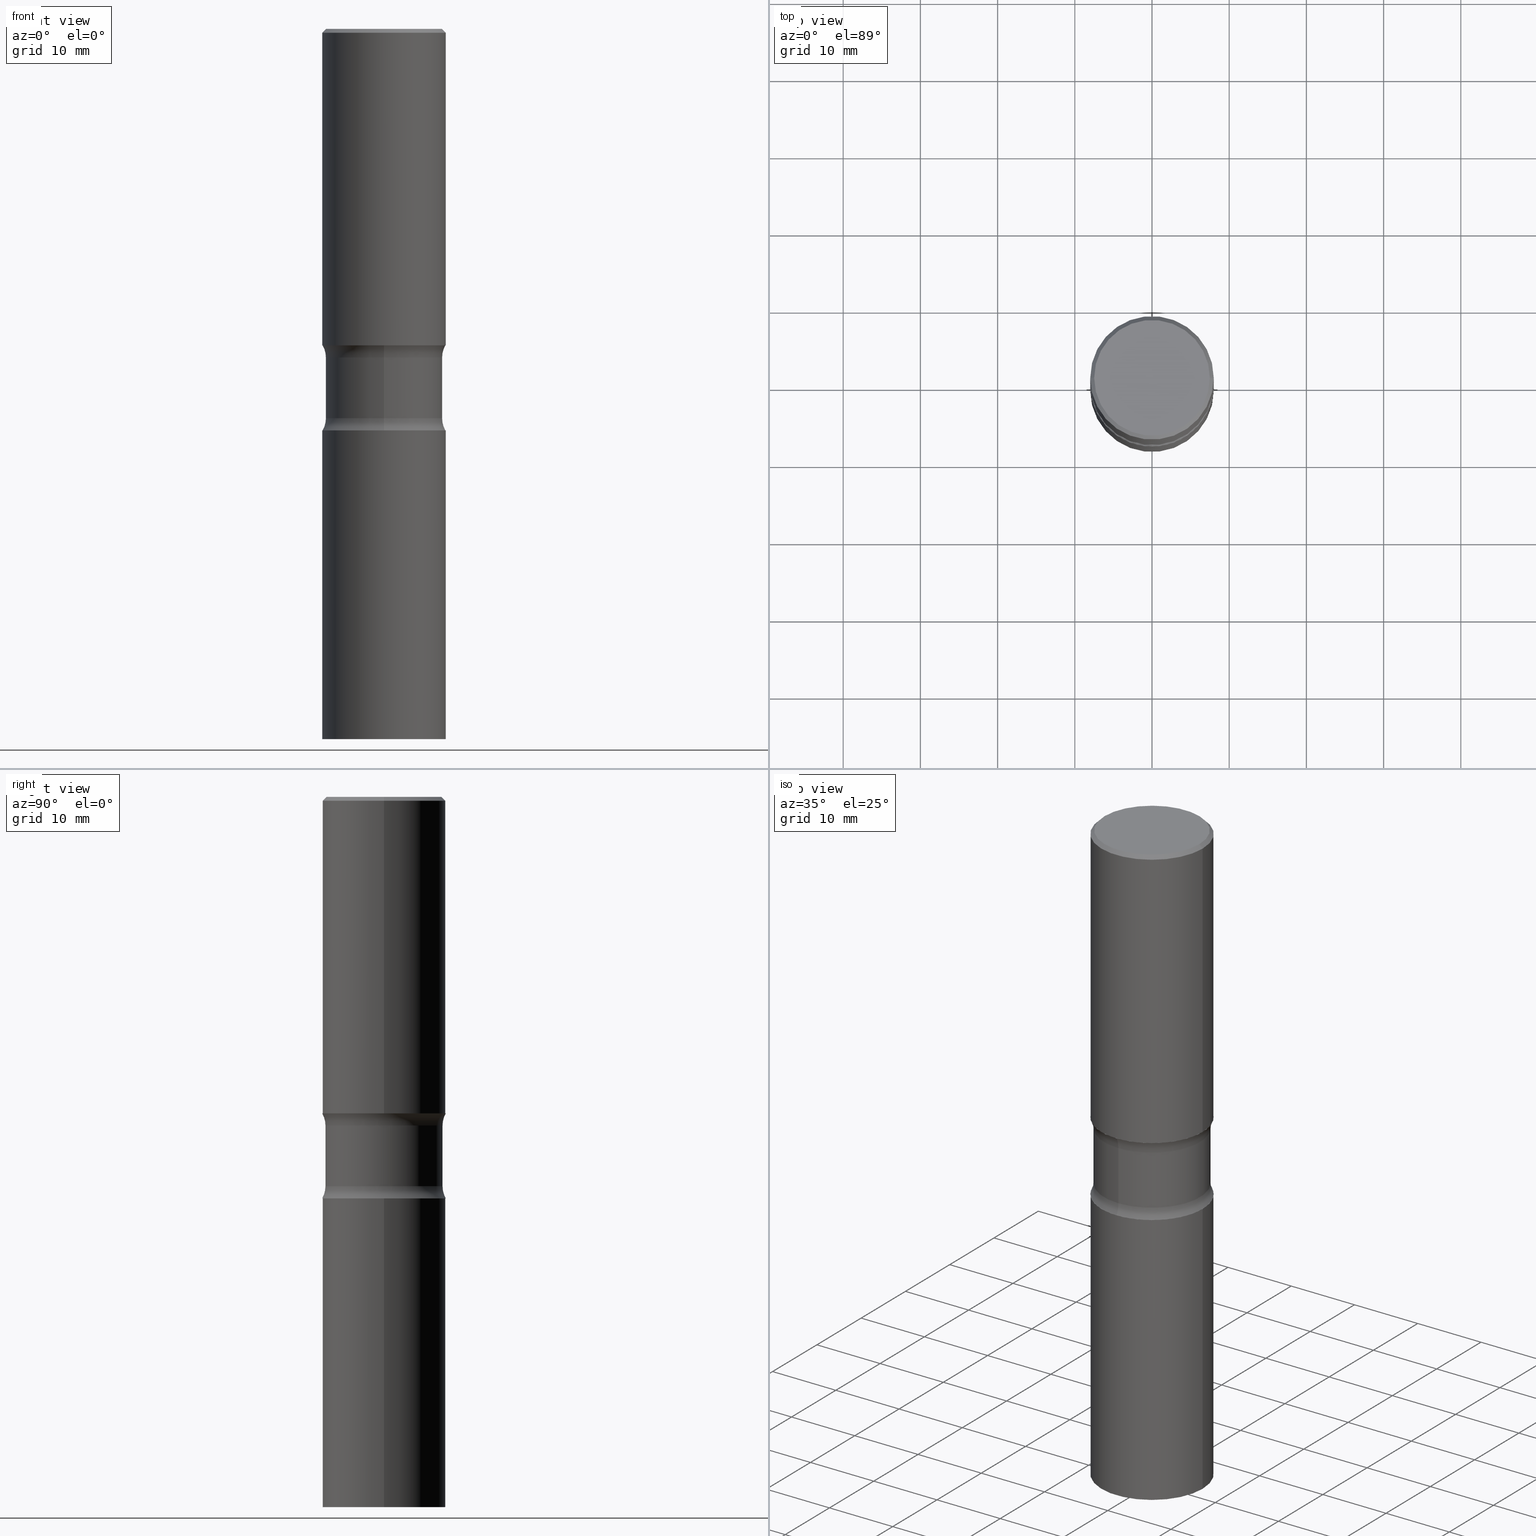
[diagram: canonical four-view strip — front | top / right | iso, engineering-drawing reading convention]
A machine part, canonical four-view strip (front | top / right | iso — engineering-drawing reading convention). The complete STEP part file that produces these views, byte-faithful:
ISO-10303-21;
HEADER;
FILE_DESCRIPTION (( 'STEP AP203' ),
    '1' );
FILE_NAME ('44634.STEP',
    '2024-03-11T13:38:04',
    ( '' ),
    ( '' ),
    'SwSTEP 2.0',
    'SolidWorks 2023',
    '' );
FILE_SCHEMA (( 'CONFIG_CONTROL_DESIGN' ));
ENDSEC;

DATA;
#1 = CARTESIAN_POINT ( 'NONE',  ( 4.856852841857767702E-29, -6.928388333628615864E-15, -1.985216957964294870 ) ) ;
#2 = ORIENTED_EDGE ( 'NONE', *, *, #5, .F. ) ;
#3 = AXIS2_PLACEMENT_3D ( 'NONE', #485, #288, #360 ) ;
#4 = LOCAL_TIME ( 9, 38, 4.000000000000000000, #381 ) ;
#5 = EDGE_CURVE ( 'NONE', #200, #50, #331, .T. ) ;
#6 = CC_DESIGN_PERSON_AND_ORGANIZATION_ASSIGNMENT ( #36, #502, ( #290 ) ) ;
#7 = ORIENTED_EDGE ( 'NONE', *, *, #106, .T. ) ;
#8 = LOCAL_TIME ( 9, 38, 4.000000000000000000, #265 ) ;
#9 = ORIENTED_EDGE ( 'NONE', *, *, #151, .T. ) ;
#10 = ORIENTED_EDGE ( 'NONE', *, *, #199, .T. ) ;
#11 = CARTESIAN_POINT ( 'NONE',  ( 4.111182931094906957E-29, -5.834292197691040405E-15, -1.676083042035705573 ) ) ;
#12 = VERTEX_POINT ( 'NONE', #458 ) ;
#13 = DIRECTION ( 'NONE',  ( -2.438088387897960049E-29, 3.491481338843145188E-15, 1.000000000000000000 ) ) ;
#14 = DIRECTION ( 'NONE',  ( -0.7071067811865471286, 2.468850131082252722E-15, -0.7071067811865479058 ) ) ;
#15 = EDGE_CURVE ( 'NONE', #317, #279, #396, .T. ) ;
#16 = ORIENTED_EDGE ( 'NONE', *, *, #15, .T. ) ;
#17 = DIRECTION ( 'NONE',  ( 1.000000000000000000, -6.982962677686265922E-15, 0.000000000000000000 ) ) ;
#18 = ORIENTED_EDGE ( 'NONE', *, *, #78, .F. ) ;
#19 = DIRECTION ( 'NONE',  ( 1.000000000000000000, -6.982962677686267499E-15, 4.876053491004737710E-29 ) ) ;
#20 = CARTESIAN_POINT ( 'NONE',  ( 4.890937612370289799E-31, -6.982962677686315028E-17, -0.02000000000000006981 ) ) ;
#21 = VERTEX_POINT ( 'NONE', #377 ) ;
#22 = CC_DESIGN_PERSON_AND_ORGANIZATION_ASSIGNMENT ( #304, #109, ( #110 ) ) ;
#23 = FACE_OUTER_BOUND ( 'NONE', #313, .T. ) ;
#24 = DIRECTION ( 'NONE',  ( -2.445468806185136597E-29, 3.491481338843145583E-15, 1.000000000000000000 ) ) ;
#25 = CONICAL_SURFACE ( 'NONE', #147, 0.3149499999999998967, 0.7853981633974477239 ) ;
#26 = DIRECTION ( 'NONE',  ( 1.000000000000000000, -6.860497997771530774E-15, 4.840214122948046087E-29 ) ) ;
#27 = DATE_TIME_ROLE ( 'classification_date' ) ;
#28 = DIRECTION ( 'NONE',  ( -1.000000000000000000, 6.982962677686265922E-15, -4.883557194083112340E-29 ) ) ;
#29 = DIRECTION ( 'NONE',  ( 1.000000000000000000, -6.982962677686266711E-15, 0.000000000000000000 ) ) ;
#30 = CARTESIAN_POINT ( 'NONE',  ( 8.857488016002564476E-29, -1.264614540928987199E-14, -3.621999999999999886 ) ) ;
#31 = PERSON_AND_ORGANIZATION ( #477, #470 ) ;
#32 = DIRECTION ( 'NONE',  ( 2.412125853363540713E-29, -3.539230345046689582E-15, -1.000000000000000000 ) ) ;
#33 = EDGE_CURVE ( 'NONE', #200, #486, #467, .T. ) ;
#34 = DATE_AND_TIME ( #65, #234 ) ;
#35 = AXIS2_PLACEMENT_3D ( 'NONE', #20, #174, #74 ) ;
#36 = PERSON_AND_ORGANIZATION ( #477, #470 ) ;
#37 = AXIS2_PLACEMENT_3D ( 'NONE', #1, #211, #366 ) ;
#38 = APPROVAL_STATUS ( 'not_yet_approved' ) ;
#39 = ORIENTED_EDGE ( 'NONE', *, *, #457, .F. ) ;
#40 = VECTOR ( 'NONE', #306, 39.37007874015748143 ) ;
#41 = ORIENTED_EDGE ( 'NONE', *, *, #274, .F. ) ;
#42 = EDGE_CURVE ( 'NONE', #80, #54, #237, .T. ) ;
#43 = ORIENTED_EDGE ( 'NONE', *, *, #475, .F. ) ;
#44 = ORIENTED_EDGE ( 'NONE', *, *, #457, .T. ) ;
#45 = EDGE_LOOP ( 'NONE', ( #247, #278, #484, #197 ) ) ;
#46 = DIRECTION ( 'NONE',  ( -2.445468806185136877E-29, 3.491481338843145188E-15, 1.000000000000000000 ) ) ;
#47 = FACE_OUTER_BOUND ( 'NONE', #126, .T. ) ;
#48 = ADVANCED_FACE ( 'NONE', ( #62 ), #490, .F. ) ;
#49 = DIRECTION ( 'NONE',  ( -1.000000000000000000, 6.982962677686265922E-15, -4.876176775795935793E-29 ) ) ;
#50 = VERTEX_POINT ( 'NONE', #139 ) ;
#51 = CARTESIAN_POINT ( 'NONE',  ( -2.905420902056201864E-15, -0.4235000000000058162, -1.676083042035704240 ) ) ;
#52 = CIRCLE ( 'NONE', #155, 0.3149500000000000077 ) ;
#53 = VECTOR ( 'NONE', #500, 39.37007874015748143 ) ;
#54 = VERTEX_POINT ( 'NONE', #414 ) ;
#55 = DIRECTION ( 'NONE',  ( -6.982962677686266711E-15, -1.000000000000000000, 0.000000000000000000 ) ) ;
#56 = ADVANCED_FACE ( 'NONE', ( #298 ), #154, .F. ) ;
#57 = EDGE_LOOP ( 'NONE', ( #9, #156, #399, #244 ) ) ;
#58 = LINE ( 'NONE', #371, #375 ) ;
#59 = DIRECTION ( 'NONE',  ( 2.412125853363540713E-29, -3.539230345046689582E-15, -1.000000000000000000 ) ) ;
#60 = DIRECTION ( 'NONE',  ( 2.438088387897960049E-29, -3.491481338843145188E-15, -1.000000000000000000 ) ) ;
#61 = AXIS2_PLACEMENT_3D ( 'NONE', #249, #376, #409 ) ;
#62 = FACE_OUTER_BOUND ( 'NONE', #364, .T. ) ;
#63 = APPROVAL_STATUS ( 'not_yet_approved' ) ;
#64 = DIRECTION ( 'NONE',  ( 2.412125853363540713E-29, -3.539230345046689582E-15, -1.000000000000000000 ) ) ;
#65 = CALENDAR_DATE ( 2024, 11, 3 ) ;
#66 = ADVANCED_FACE ( 'NONE', ( #303 ), #455, .T. ) ;
#67 = LINE ( 'NONE', #146, #40 ) ;
#68 = CALENDAR_DATE ( 2024, 11, 3 ) ;
#69 = DIRECTION ( 'NONE',  ( 1.000000000000000000, -6.982962677686265922E-15, 0.000000000000000000 ) ) ;
#70 = PLANE ( 'NONE',  #469 ) ;
#71 = PERSON_AND_ORGANIZATION_ROLE ( 'design_supplier' ) ;
#72 = VECTOR ( 'NONE', #324, 39.37007874015748143 ) ;
#73 = CARTESIAN_POINT ( 'NONE',  ( 0.3149500000000000077, -2.199284095337289871E-15, 1.535751875536930130E-29 ) ) ;
#74 = DIRECTION ( 'NONE',  ( -1.000000000000000000, 6.982962677686265922E-15, 0.000000000000000000 ) ) ;
#75 = ORIENTED_EDGE ( 'NONE', *, *, #33, .T. ) ;
#76 = VERTEX_POINT ( 'NONE', #254 ) ;
#77 = VECTOR ( 'NONE', #380, 39.37007874015748143 ) ;
#78 = EDGE_CURVE ( 'NONE', #240, #12, #463, .T. ) ;
#79 =( GEOMETRIC_REPRESENTATION_CONTEXT ( 3 ) GLOBAL_UNCERTAINTY_ASSIGNED_CONTEXT ( ( #352 ) ) GLOBAL_UNIT_ASSIGNED_CONTEXT ( ( #430, #390, #505 ) ) REPRESENTATION_CONTEXT ( 'NONE', 'WORKASPACE' ) );
#80 = VERTEX_POINT ( 'NONE', #291 ) ;
#81 = ORIENTED_EDGE ( 'NONE', *, *, #340, .F. ) ;
#82 = MANIFOLD_SOLID_BREP ( 'Body-Move/Copy2[1]', #111 ) ;
#83 = AXIS2_PLACEMENT_3D ( 'NONE', #387, #64, #190 ) ;
#84 = ADVANCED_FACE ( 'NONE', ( #286 ), #232, .T. ) ;
#85 = ORIENTED_EDGE ( 'NONE', *, *, #310, .T. ) ;
#86 = DIRECTION ( 'NONE',  ( -1.000000000000000000, 6.982962677686265922E-15, -4.876176775795935793E-29 ) ) ;
#87 = ORIENTED_EDGE ( 'NONE', *, *, #329, .F. ) ;
#88 = CARTESIAN_POINT ( 'NONE',  ( 8.804979533899115316E-29, -1.272134054425921312E-14, -3.621999999999999886 ) ) ;
#89 = LINE ( 'NONE', #416, #420 ) ;
#90 = VERTEX_POINT ( 'NONE', #271 ) ;
#91 = PLANE ( 'NONE',  #363 ) ;
#92 = EDGE_CURVE ( 'NONE', #193, #210, #185, .T. ) ;
#93 = AXIS2_PLACEMENT_3D ( 'NONE', #196, #243, #49 ) ;
#94 = CARTESIAN_POINT ( 'NONE',  ( 0.000000000000000000, 0.000000000000000000, 0.000000000000000000 ) ) ;
#95 = EDGE_LOOP ( 'NONE', ( #408, #171, #87, #481 ) ) ;
#96 = FACE_OUTER_BOUND ( 'NONE', #119, .T. ) ;
#97 = DIRECTION ( 'NONE',  ( 6.860497997771532351E-15, 1.000000000000000000, 0.000000000000000000 ) ) ;
#98 = PLANE ( 'NONE',  #281 ) ;
#99 = DIRECTION ( 'NONE',  ( -2.445468806185136597E-29, 3.491481338843145583E-15, 1.000000000000000000 ) ) ;
#100 = APPROVAL_DATE_TIME ( #459, #123 ) ;
#101 = CARTESIAN_POINT ( 'NONE',  ( -0.3149499999999999522, 2.237854346276435196E-15, -1.549218606675782116E-29 ) ) ;
#102 = AXIS2_PLACEMENT_3D ( 'NONE', #186, #343, #108 ) ;
#103 = DIRECTION ( 'NONE',  ( 2.412125853363540433E-29, -3.539230345046689582E-15, -1.000000000000000000 ) ) ;
#104 = CC_DESIGN_APPROVAL ( #439, ( #114 ) ) ;
#105 = DATE_AND_TIME ( #378, #4 ) ;
#106 = EDGE_CURVE ( 'NONE', #90, #76, #441, .T. ) ;
#107 = CC_DESIGN_PERSON_AND_ORGANIZATION_ASSIGNMENT ( #307, #150, ( #270 ) ) ;
#108 = DIRECTION ( 'NONE',  ( 1.000000000000000000, -6.982962677686266711E-15, 4.876176775795935232E-29 ) ) ;
#109 = PERSON_AND_ORGANIZATION_ROLE ( 'creator' ) ;
#110 = PRODUCT_DEFINITION ( 'UNKNOWN', '', #114, #158 ) ;
#111 = CLOSED_SHELL ( 'NONE', ( #162, #465, #405, #388 ) ) ;
#112 = PERSON_AND_ORGANIZATION_ROLE ( 'creator' ) ;
#113 = AXIS2_PLACEMENT_3D ( 'NONE', #326, #60, #206 ) ;
#114 = PRODUCT_DEFINITION_FORMATION_WITH_SPECIFIED_SOURCE ( 'ANY', '', #290, .NOT_KNOWN. ) ;
#115 = LENGTH_MEASURE_WITH_UNIT ( LENGTH_MEASURE( 0.02539999999999999897 ), #145 );
#116 = ORIENTED_EDGE ( 'NONE', *, *, #310, .F. ) ;
#117 = EDGE_CURVE ( 'NONE', #348, #76, #507, .T. ) ;
#118 = AXIS2_PLACEMENT_3D ( 'NONE', #494, #103, #179 ) ;
#119 = EDGE_LOOP ( 'NONE', ( #2, #75, #122, #238 ) ) ;
#120 = CIRCLE ( 'NONE', #349, 0.2985000000000000431 ) ;
#121 = CC_DESIGN_SECURITY_CLASSIFICATION ( #270, ( #114 ) ) ;
#122 = ORIENTED_EDGE ( 'NONE', *, *, #492, .T. ) ;
#123 = APPROVAL ( #63, 'UNSPECIFIED' ) ;
#124 = VERTEX_POINT ( 'NONE', #252 ) ;
#125 = CARTESIAN_POINT ( 'NONE',  ( 3.961672032930462979E-29, -5.614919934439967278E-15, -1.614100000000000090 ) ) ;
#126 = EDGE_LOOP ( 'NONE', ( #434, #471 ) ) ;
#127 = DIRECTION ( 'NONE',  ( 0.000000000000000000, 0.000000000000000000, 1.000000000000000000 ) ) ;
#128 = DIRECTION ( 'NONE',  ( -2.445468806185136597E-29, 3.491481338843145583E-15, 1.000000000000000000 ) ) ;
#129 = CARTESIAN_POINT ( 'NONE',  ( -0.3149499999999998967, 2.129454468560425784E-15, -0.02000000000000006981 ) ) ;
#130 = ORIENTED_EDGE ( 'NONE', *, *, #106, .F. ) ;
#131 = DIRECTION ( 'NONE',  ( 2.438088387897960049E-29, -3.491481338843145188E-15, -1.000000000000000000 ) ) ;
#132 = CARTESIAN_POINT ( 'NONE',  ( 2.199284095337329708E-15, 0.3149499999999944011, -1.614100000000001200 ) ) ;
#133 = EDGE_LOOP ( 'NONE', ( #16, #321, #130, #41 ) ) ;
#134 = DIRECTION ( 'NONE',  ( 2.445468806185136597E-29, -3.491481338843145583E-15, -1.000000000000000000 ) ) ;
#135 = AXIS2_PLACEMENT_3D ( 'NONE', #181, #373, #300 ) ;
#136 = TOROIDAL_SURFACE ( 'NONE', #192, 0.4235000000000000986, 0.1250000000000000278 ) ;
#137 = DIRECTION ( 'NONE',  ( -2.445468806185136597E-29, 3.491481338843145583E-15, 1.000000000000000000 ) ) ;
#138 = APPROVAL_PERSON_ORGANIZATION ( #228, #439, #220 ) ;
#139 = CARTESIAN_POINT ( 'NONE',  ( -0.3149500000000000077, -7.659098656808344900E-15, -2.047200000000000131 ) ) ;
#140 = CARTESIAN_POINT ( 'NONE',  ( 3.766383079868017645E-29, -8.923483477536769759E-15, -2.047200000000000131 ) ) ;
#141 = CARTESIAN_POINT ( 'NONE',  ( 0.000000000000000000, 0.000000000000000000, 0.000000000000000000 ) ) ;
#142 = PERSON_AND_ORGANIZATION ( #477, #470 ) ;
#143 = CARTESIAN_POINT ( 'NONE',  ( -0.2949499999999998234, 2.094539655171994135E-15, 1.280553747028670770E-17 ) ) ;
#144 = DIRECTION ( 'NONE',  ( 1.000000000000000000, -6.982962677686263555E-15, 0.000000000000000000 ) ) ;
#145 =( LENGTH_UNIT ( ) NAMED_UNIT ( * ) SI_UNIT ( $, .METRE. ) );
#146 = CARTESIAN_POINT ( 'NONE',  ( 0.3149499999999999522, -2.199284095337289476E-15, 1.535751875536929569E-29 ) ) ;
#147 = AXIS2_PLACEMENT_3D ( 'NONE', #294, #134, #299 ) ;
#148 = CIRCLE ( 'NONE', #260, 0.3149500000000000077 ) ;
#149 = APPLICATION_PROTOCOL_DEFINITION ( 'international standard', 'config_control_design', 1994, #297 ) ;
#150 = PERSON_AND_ORGANIZATION_ROLE ( 'classification_officer' ) ;
#151 = EDGE_CURVE ( 'NONE', #486, #200, #385, .T. ) ;
#152 = CARTESIAN_POINT ( 'NONE',  ( -0.3149500000000000077, -6.148604816253561985E-16, -1.614100000000000090 ) ) ;
#153 = CC_DESIGN_DATE_AND_TIME_ASSIGNMENT ( #34, #27, ( #270 ) ) ;
#154 = TOROIDAL_SURFACE ( 'NONE', #135, 0.4234999999999999321, 0.1250000000000000000 ) ;
#155 = AXIS2_PLACEMENT_3D ( 'NONE', #282, #493, #402 ) ;
#156 = ORIENTED_EDGE ( 'NONE', *, *, #5, .T. ) ;
#157 = ADVANCED_FACE ( 'NONE', ( #296 ), #177, .F. ) ;
#158 = DESIGN_CONTEXT ( 'detailed design', #297, 'design' ) ;
#159 = AXIS2_PLACEMENT_3D ( 'NONE', #444, #137, #173 ) ;
#160 = TOROIDAL_SURFACE ( 'NONE', #3, 0.4234999999999999321, 0.1250000000000000000 ) ;
#161 = ORIENTED_EDGE ( 'NONE', *, *, #263, .T. ) ;
#162 = ADVANCED_FACE ( 'NONE', ( #406 ), #289, .T. ) ;
#163 = ORIENTED_EDGE ( 'NONE', *, *, #367, .T. ) ;
#164 = DIRECTION ( 'NONE',  ( 2.412125853363540713E-29, -3.539230345046689582E-15, -1.000000000000000000 ) ) ;
#165 = ORIENTED_EDGE ( 'NONE', *, *, #367, .F. ) ;
#166 = FACE_OUTER_BOUND ( 'NONE', #95, .T. ) ;
#167 = CARTESIAN_POINT ( 'NONE',  ( 4.854786144211432469E-29, -6.931347962287293204E-15, -1.985216957964294870 ) ) ;
#168 = ADVANCED_FACE ( 'NONE', ( #358 ), #136, .F. ) ;
#169 = ORIENTED_EDGE ( 'NONE', *, *, #274, .T. ) ;
#170 = DIRECTION ( 'NONE',  ( 1.000000000000000000, -6.982962677686267499E-15, 4.876053491004737710E-29 ) ) ;
#171 = ORIENTED_EDGE ( 'NONE', *, *, #188, .T. ) ;
#172 = DIRECTION ( 'NONE',  ( 6.860497997771529985E-15, 1.000000000000000000, 0.000000000000000000 ) ) ;
#173 = DIRECTION ( 'NONE',  ( 1.000000000000000000, -6.982962677686263555E-15, 0.000000000000000000 ) ) ;
#174 = DIRECTION ( 'NONE',  ( 2.445468806185136597E-29, -3.491481338843145583E-15, -1.000000000000000000 ) ) ;
#175 = ORIENTED_EDGE ( 'NONE', *, *, #222, .T. ) ;
#176 = DIRECTION ( 'NONE',  ( 1.000000000000000000, -6.860497997771530774E-15, 4.840214122948046087E-29 ) ) ;
#177 = PLANE ( 'NONE',  #93 ) ;
#178 = AXIS2_PLACEMENT_3D ( 'NONE', #241, #127, #334 ) ;
#179 = DIRECTION ( 'NONE',  ( 6.982962677686265922E-15, 1.000000000000000000, -3.539230345046689582E-15 ) ) ;
#180 = CYLINDRICAL_SURFACE ( 'NONE', #276, 0.3149500000000000077 ) ;
#181 = CARTESIAN_POINT ( 'NONE',  ( 4.098808795874208939E-29, -5.852012663619117643E-15, -1.676083042035705573 ) ) ;
#182 = DATE_AND_TIME ( #259, #8 ) ;
#183 = DIRECTION ( 'NONE',  ( -2.445468806185136597E-29, 3.491481338843145583E-15, 1.000000000000000000 ) ) ;
#184 = DIRECTION ( 'NONE',  ( 1.000000000000000000, -6.982962677686266711E-15, 0.000000000000000000 ) ) ;
#185 = CIRCLE ( 'NONE', #353, 0.1250000000000000278 ) ;
#186 = CARTESIAN_POINT ( 'NONE',  ( 0.000000000000000000, 0.000000000000000000, 0.000000000000000000 ) ) ;
#187 = CIRCLE ( 'NONE', #437, 0.3149500000000000077 ) ;
#188 = EDGE_CURVE ( 'NONE', #12, #54, #235, .T. ) ;
#189 = PERSON_AND_ORGANIZATION ( #477, #470 ) ;
#190 = DIRECTION ( 'NONE',  ( 6.982962677686265922E-15, 1.000000000000000000, -3.469564049740292770E-15 ) ) ;
#191 = PERSON_AND_ORGANIZATION ( #477, #470 ) ;
#192 = AXIS2_PLACEMENT_3D ( 'NONE', #167, #410, #318 ) ;
#193 = VERTEX_POINT ( 'NONE', #479 ) ;
#194 = EDGE_CURVE ( 'NONE', #12, #240, #480, .T. ) ;
#195 = DIRECTION ( 'NONE',  ( -2.445468806185136597E-29, 3.491481338843145583E-15, 1.000000000000000000 ) ) ;
#196 = CARTESIAN_POINT ( 'NONE',  ( 2.059624841783562880E-15, 0.2949499999999998234, -1.023409652156634547E-15 ) ) ;
#197 = ORIENTED_EDGE ( 'NONE', *, *, #329, .T. ) ;
#198 = AXIS2_PLACEMENT_3D ( 'NONE', #425, #195, #69 ) ;
#199 = EDGE_CURVE ( 'NONE', #201, #21, #309, .T. ) ;
#200 = VERTEX_POINT ( 'NONE', #361 ) ;
#201 = VERTEX_POINT ( 'NONE', #132 ) ;
#202 = ORIENTED_EDGE ( 'NONE', *, *, #246, .T. ) ;
#203 = CARTESIAN_POINT ( 'NONE',  ( 3.961672032930462979E-29, -5.614919934439967278E-15, -1.614100000000000090 ) ) ;
#204 = EDGE_LOOP ( 'NONE', ( #452, #85 ) ) ;
#205 = CIRCLE ( 'NONE', #342, 0.1250000000000000000 ) ;
#206 = DIRECTION ( 'NONE',  ( -1.000000000000000000, 6.982962677686265922E-15, -4.876176775795935793E-29 ) ) ;
#207 = CC_DESIGN_APPROVAL ( #508, ( #270 ) ) ;
#208 = APPROVAL_PERSON_ORGANIZATION ( #189, #508, #424 ) ;
#209 = ORIENTED_EDGE ( 'NONE', *, *, #340, .T. ) ;
#210 = VERTEX_POINT ( 'NONE', #327 ) ;
#211 = DIRECTION ( 'NONE',  ( 2.412125853363540713E-29, -3.539230345046689582E-15, -1.000000000000000000 ) ) ;
#212 = DIRECTION ( 'NONE',  ( 1.000000000000000000, -6.982962677686266711E-15, 0.000000000000000000 ) ) ;
#213 = EDGE_CURVE ( 'NONE', #193, #80, #52, .T. ) ;
#214 = DIRECTION ( 'NONE',  ( 0.7071067811865471286, -7.319954787623254468E-15, -0.7071067811865479058 ) ) ;
#215 = AXIS2_PLACEMENT_3D ( 'NONE', #51, #176, #172 ) ;
#216 = CARTESIAN_POINT ( 'NONE',  ( 2.084414359289390829E-15, 0.2984999999999941034, -1.676083042035706683 ) ) ;
#217 = CC_DESIGN_APPROVAL ( #123, ( #110 ) ) ;
#218 = DIRECTION ( 'NONE',  ( -2.445468806185136597E-29, 3.491481338843145583E-15, 1.000000000000000000 ) ) ;
#219 = COORDINATED_UNIVERSAL_TIME_OFFSET ( 5, 0, .BEHIND. ) ;
#220 = APPROVAL_ROLE ( '' ) ;
#221 = FACE_OUTER_BOUND ( 'NONE', #133, .T. ) ;
#222 = EDGE_CURVE ( 'NONE', #21, #201, #187, .T. ) ;
#223 = APPROVAL_DATE_TIME ( #338, #508 ) ;
#224 = DIRECTION ( 'NONE',  ( -6.982962677686265133E-15, -1.000000000000000000, 0.000000000000000000 ) ) ;
#225 = CARTESIAN_POINT ( 'NONE',  ( 5.006363740022211680E-29, -7.147760596879688202E-15, -2.047200000000000131 ) ) ;
#226 = CARTESIAN_POINT ( 'NONE',  ( 5.006363740022211680E-29, -7.147760596879688202E-15, -2.047200000000000131 ) ) ;
#227 = AXIS2_PLACEMENT_3D ( 'NONE', #497, #421, #501 ) ;
#228 = PERSON_AND_ORGANIZATION ( #477, #470 ) ;
#229 = ORIENTED_EDGE ( 'NONE', *, *, #199, .F. ) ;
#230 = ORIENTED_EDGE ( 'NONE', *, *, #194, .F. ) ;
#231 = EDGE_CURVE ( 'NONE', #240, #210, #89, .T. ) ;
#232 = CONICAL_SURFACE ( 'NONE', #35, 0.3149499999999998967, 0.7853981633974477239 ) ;
#233 = CIRCLE ( 'NONE', #322, 0.3149500000000000077 ) ;
#234 = LOCAL_TIME ( 9, 38, 4.000000000000000000, #345 ) ;
#235 = LINE ( 'NONE', #488, #72 ) ;
#236 = ADVANCED_FACE ( 'NONE', ( #336 ), #70, .F. ) ;
#237 = CIRCLE ( 'NONE', #341, 0.1250000000000000278 ) ;
#238 = ORIENTED_EDGE ( 'NONE', *, *, #246, .F. ) ;
#239 = CIRCLE ( 'NONE', #37, 0.2985000000000000431 ) ;
#240 = VERTEX_POINT ( 'NONE', #216 ) ;
#241 = CARTESIAN_POINT ( 'NONE',  ( 0.000000000000000000, 0.000000000000000000, 0.000000000000000000 ) ) ;
#242 = CARTESIAN_POINT ( 'NONE',  ( -3.131554243005659264E-46, 4.471029511141341874E-32, 1.280553747030123384E-17 ) ) ;
#243 = DIRECTION ( 'NONE',  ( 2.438088387897960049E-29, -3.491481338843145188E-15, -1.000000000000000000 ) ) ;
#244 = ORIENTED_EDGE ( 'NONE', *, *, #492, .F. ) ;
#245 = DIRECTION ( 'NONE',  ( 6.982962677686265922E-15, 1.000000000000000000, -3.660767830705880744E-15 ) ) ;
#246 = EDGE_CURVE ( 'NONE', #50, #124, #148, .T. ) ;
#247 = ORIENTED_EDGE ( 'NONE', *, *, #42, .F. ) ;
#248 = AXIS2_PLACEMENT_3D ( 'NONE', #30, #99, #144 ) ;
#249 = CARTESIAN_POINT ( 'NONE',  ( 8.804979533899115316E-29, -1.272134054425921312E-14, -3.621999999999999886 ) ) ;
#250 = EDGE_LOOP ( 'NONE', ( #292, #311 ) ) ;
#251 = DIRECTION ( 'NONE',  ( -2.445468806185136597E-29, 3.491481338843145583E-15, 1.000000000000000000 ) ) ;
#252 = CARTESIAN_POINT ( 'NONE',  ( 0.3149500000000000077, -9.347044692216978073E-15, -2.047200000000000131 ) ) ;
#253 = CC_DESIGN_DATE_AND_TIME_ASSIGNMENT ( #182, #499, ( #110 ) ) ;
#254 = CARTESIAN_POINT ( 'NONE',  ( -0.3149499999999998967, 2.129454468560425784E-15, -0.02000000000000006981 ) ) ;
#255 = FACE_OUTER_BOUND ( 'NONE', #355, .T. ) ;
#256 = MANIFOLD_SOLID_BREP ( 'Body-Move/Copy2[4]', #436 ) ;
#257 = CARTESIAN_POINT ( 'NONE',  ( 3.766383079868017645E-29, -8.923483477536769759E-15, -2.047200000000000131 ) ) ;
#258 = DIRECTION ( 'NONE',  ( 1.000000000000000000, -6.982962677686266711E-15, 4.876176775795935232E-29 ) ) ;
#259 = CALENDAR_DATE ( 2024, 11, 3 ) ;
#260 = AXIS2_PLACEMENT_3D ( 'NONE', #226, #183, #29 ) ;
#261 = LOCAL_TIME ( 9, 38, 4.000000000000000000, #266 ) ;
#262 = APPROVAL_ROLE ( '' ) ;
#263 = EDGE_CURVE ( 'NONE', #279, #317, #293, .T. ) ;
#264 = DIRECTION ( 'NONE',  ( -2.412125853363540433E-29, 3.539230345046689582E-15, 1.000000000000000000 ) ) ;
#265 = COORDINATED_UNIVERSAL_TIME_OFFSET ( 5, 0, .BEHIND. ) ;
#266 = COORDINATED_UNIVERSAL_TIME_OFFSET ( 5, 0, .BEHIND. ) ;
#267 = DIRECTION ( 'NONE',  ( 6.982962677686265922E-15, 1.000000000000000000, -3.660767830705879955E-15 ) ) ;
#268 = APPLICATION_CONTEXT ( 'configuration controlled 3d designs of mechanical parts and assemblies' ) ;
#269 = AXIS2_PLACEMENT_3D ( 'NONE', #94, #24, #438 ) ;
#270 = SECURITY_CLASSIFICATION ( '', '', #308 ) ;
#271 = CARTESIAN_POINT ( 'NONE',  ( 0.3149499999999998967, -2.230543471175006266E-15, -0.02000000000000006981 ) ) ;
#272 = DIRECTION ( 'NONE',  ( -2.445468806185136597E-29, 3.491481338843145583E-15, 1.000000000000000000 ) ) ;
#273 = DIMENSIONAL_EXPONENTS ( 1.000000000000000000, 0.000000000000000000, 0.000000000000000000, 0.000000000000000000, 0.000000000000000000, 0.000000000000000000, 0.000000000000000000 ) ;
#274 = EDGE_CURVE ( 'NONE', #317, #90, #67, .T. ) ;
#275 = ORIENTED_EDGE ( 'NONE', *, *, #194, .T. ) ;
#276 = AXIS2_PLACEMENT_3D ( 'NONE', #335, #496, #468 ) ;
#277 = DIRECTION ( 'NONE',  ( 6.982962677686265922E-15, 1.000000000000000000, -3.469564049740292770E-15 ) ) ;
#278 = ORIENTED_EDGE ( 'NONE', *, *, #213, .F. ) ;
#279 = VERTEX_POINT ( 'NONE', #152 ) ;
#280 = EDGE_LOOP ( 'NONE', ( #391, #161, #169, #81 ) ) ;
#281 = AXIS2_PLACEMENT_3D ( 'NONE', #415, #13, #369 ) ;
#282 = CARTESIAN_POINT ( 'NONE',  ( 5.006363740022211680E-29, -7.147760596879688202E-15, -2.047200000000000131 ) ) ;
#283 = EDGE_LOOP ( 'NONE', ( #478, #275, #350, #43 ) ) ;
#284 = DIRECTION ( 'NONE',  ( -2.445468806185136597E-29, 3.491481338843145583E-15, 1.000000000000000000 ) ) ;
#285 = DIRECTION ( 'NONE',  ( 6.982962677686265922E-15, 1.000000000000000000, -3.469564049740292770E-15 ) ) ;
#286 = FACE_OUTER_BOUND ( 'NONE', #432, .T. ) ;
#287 = ORIENTED_EDGE ( 'NONE', *, *, #42, .T. ) ;
#288 = DIRECTION ( 'NONE',  ( 2.412125853363540713E-29, -3.539230345046689582E-15, -1.000000000000000000 ) ) ;
#289 = CYLINDRICAL_SURFACE ( 'NONE', #269, 0.3149500000000000077 ) ;
#290 = PRODUCT ( '44634', '44634', '', ( #495 ) ) ;
#291 = CARTESIAN_POINT ( 'NONE',  ( -2.160713844398093664E-15, -0.3149500000000071132, -2.047199999999998798 ) ) ;
#292 = ORIENTED_EDGE ( 'NONE', *, *, #347, .T. ) ;
#293 = CIRCLE ( 'NONE', #227, 0.3149500000000000077 ) ;
#294 = CARTESIAN_POINT ( 'NONE',  ( 4.890937612370289799E-31, -6.982962677686315028E-17, -0.02000000000000006981 ) ) ;
#295 = EDGE_CURVE ( 'NONE', #279, #76, #460, .T. ) ;
#296 = FACE_OUTER_BOUND ( 'NONE', #250, .T. ) ;
#297 = APPLICATION_CONTEXT ( 'configuration controlled 3d designs of mechanical parts and assemblies' ) ;
#298 = FACE_OUTER_BOUND ( 'NONE', #356, .T. ) ;
#299 = DIRECTION ( 'NONE',  ( -1.000000000000000000, 6.982962677686265922E-15, 0.000000000000000000 ) ) ;
#300 = DIRECTION ( 'NONE',  ( 6.982962677686265922E-15, 1.000000000000000000, -3.539230345046689582E-15 ) ) ;
#301 = CALENDAR_DATE ( 2024, 11, 3 ) ;
#302 = DIRECTION ( 'NONE',  ( 2.412125853363540713E-29, -3.539230345046689582E-15, -1.000000000000000000 ) ) ;
#303 = FACE_OUTER_BOUND ( 'NONE', #280, .T. ) ;
#304 = PERSON_AND_ORGANIZATION ( #477, #470 ) ;
#305 = CIRCLE ( 'NONE', #503, 0.2949499999999998234 ) ;
#306 = DIRECTION ( 'NONE',  ( -2.445468806185136877E-29, 3.491481338843145188E-15, 1.000000000000000000 ) ) ;
#307 = PERSON_AND_ORGANIZATION ( #477, #470 ) ;
#308 = SECURITY_CLASSIFICATION_LEVEL ( 'unclassified' ) ;
#309 = CIRCLE ( 'NONE', #451, 0.3149500000000000077 ) ;
#310 = EDGE_CURVE ( 'NONE', #80, #193, #407, .T. ) ;
#311 = ORIENTED_EDGE ( 'NONE', *, *, #351, .T. ) ;
#312 = CIRCLE ( 'NONE', #332, 0.2949499999999998234 ) ;
#313 = EDGE_LOOP ( 'NONE', ( #316, #394, #400, #209 ) ) ;
#314 = PRODUCT_RELATED_PRODUCT_CATEGORY ( 'detail', '', ( #290 ) ) ;
#315 = CARTESIAN_POINT ( 'NONE',  ( 2.957284694000182846E-15, 0.4234999999999931597, -1.985216957964296203 ) ) ;
#316 = ORIENTED_EDGE ( 'NONE', *, *, #379, .F. ) ;
#317 = VERTEX_POINT ( 'NONE', #423 ) ;
#318 = DIRECTION ( 'NONE',  ( 6.982962677686265922E-15, 1.000000000000000000, -3.539230345046689582E-15 ) ) ;
#319 = ADVANCED_FACE ( 'NONE', ( #221 ), #466, .T. ) ;
#320 = AXIS2_PLACEMENT_3D ( 'NONE', #417, #59, #362 ) ;
#321 = ORIENTED_EDGE ( 'NONE', *, *, #295, .T. ) ;
#322 = AXIS2_PLACEMENT_3D ( 'NONE', #225, #272, #184 ) ;
#323 = CARTESIAN_POINT ( 'NONE',  ( 2.957284694000174168E-15, 0.4234999999999940479, -1.676083042035706905 ) ) ;
#324 = DIRECTION ( 'NONE',  ( 2.412125853363540713E-29, -3.539230345046689582E-15, -1.000000000000000000 ) ) ;
#325 = ORIENTED_EDGE ( 'NONE', *, *, #33, .F. ) ;
#326 = CARTESIAN_POINT ( 'NONE',  ( 8.857488016002564476E-29, -1.264614540928987199E-14, -3.621999999999999886 ) ) ;
#327 = CARTESIAN_POINT ( 'NONE',  ( 2.084414359289399112E-15, 0.2984999999999931042, -1.985216957964295981 ) ) ;
#328 = VERTEX_POINT ( 'NONE', #344 ) ;
#329 = EDGE_CURVE ( 'NONE', #210, #54, #239, .T. ) ;
#330 = CARTESIAN_POINT ( 'NONE',  ( 4.854786144211432469E-29, -6.931347962287293204E-15, -1.985216957964294870 ) ) ;
#331 = LINE ( 'NONE', #359, #374 ) ;
#332 = AXIS2_PLACEMENT_3D ( 'NONE', #482, #128, #19 ) ;
#333 = FACE_OUTER_BOUND ( 'NONE', #443, .T. ) ;
#334 = DIRECTION ( 'NONE',  ( 1.000000000000000000, 0.000000000000000000, 0.000000000000000000 ) ) ;
#335 = CARTESIAN_POINT ( 'NONE',  ( 0.000000000000000000, 0.000000000000000000, 0.000000000000000000 ) ) ;
#336 = FACE_OUTER_BOUND ( 'NONE', #204, .T. ) ;
#337 = CARTESIAN_POINT ( 'NONE',  ( 3.947231200063429727E-29, -5.635600029026721857E-15, -1.614100000000000090 ) ) ;
#338 = DATE_AND_TIME ( #68, #261 ) ;
#339 = CARTESIAN_POINT ( 'NONE',  ( 0.3149500000000000077, -1.484542950462716186E-14, -3.621999999999999886 ) ) ;
#340 = EDGE_CURVE ( 'NONE', #76, #90, #354, .T. ) ;
#341 = AXIS2_PLACEMENT_3D ( 'NONE', #461, #26, #97 ) ;
#342 = AXIS2_PLACEMENT_3D ( 'NONE', #323, #28, #55 ) ;
#343 = DIRECTION ( 'NONE',  ( -2.445468806185136597E-29, 3.491481338843145583E-15, 1.000000000000000000 ) ) ;
#344 = CARTESIAN_POINT ( 'NONE',  ( 0.2949499999999998234, -2.127023677808859286E-15, 1.280553747031587399E-17 ) ) ;
#345 = COORDINATED_UNIVERSAL_TIME_OFFSET ( 5, 0, .BEHIND. ) ;
#346 = CARTESIAN_POINT ( 'NONE',  ( 4.856852841857767702E-29, -6.928388333628615864E-15, -1.985216957964294870 ) ) ;
#347 = EDGE_CURVE ( 'NONE', #348, #328, #312, .T. ) ;
#348 = VERTEX_POINT ( 'NONE', #143 ) ;
#349 = AXIS2_PLACEMENT_3D ( 'NONE', #346, #32, #267 ) ;
#350 = ORIENTED_EDGE ( 'NONE', *, *, #231, .T. ) ;
#351 = EDGE_CURVE ( 'NONE', #328, #348, #305, .T. ) ;
#352 = UNCERTAINTY_MEASURE_WITH_UNIT (LENGTH_MEASURE( 1.000000000000000082E-05 ), #430, 'distance_accuracy_value', 'NONE');
#353 = AXIS2_PLACEMENT_3D ( 'NONE', #315, #429, #224 ) ;
#354 = CIRCLE ( 'NONE', #393, 0.3149499999999998967 ) ;
#355 = EDGE_LOOP ( 'NONE', ( #230, #163, #175, #39 ) ) ;
#356 = EDGE_LOOP ( 'NONE', ( #165, #18, #44, #10 ) ) ;
#357 = ADVANCED_FACE ( 'NONE', ( #23 ), #25, .T. ) ;
#358 = FACE_OUTER_BOUND ( 'NONE', #389, .T. ) ;
#359 = CARTESIAN_POINT ( 'NONE',  ( -0.3149500000000000077, 2.237854346276435590E-15, -1.549218606675782676E-29 ) ) ;
#360 = DIRECTION ( 'NONE',  ( 6.982962677686265922E-15, 1.000000000000000000, -3.539230345046689582E-15 ) ) ;
#361 = CARTESIAN_POINT ( 'NONE',  ( -0.3149500000000000077, -7.659098656808344900E-15, -3.621999999999999886 ) ) ;
#362 = DIRECTION ( 'NONE',  ( 6.982962677686265922E-15, 1.000000000000000000, -3.660767830705881533E-15 ) ) ;
#363 = AXIS2_PLACEMENT_3D ( 'NONE', #140, #131, #86 ) ;
#364 = EDGE_LOOP ( 'NONE', ( #229, #403 ) ) ;
#365 = CIRCLE ( 'NONE', #215, 0.1250000000000000000 ) ;
#366 = DIRECTION ( 'NONE',  ( 6.982962677686265922E-15, 1.000000000000000000, -3.660767830705879955E-15 ) ) ;
#367 = EDGE_CURVE ( 'NONE', #12, #21, #365, .T. ) ;
#368 = ORIENTED_EDGE ( 'NONE', *, *, #92, .F. ) ;
#369 = DIRECTION ( 'NONE',  ( 1.000000000000000000, -6.982962677686265922E-15, 4.876176775795935793E-29 ) ) ;
#370 = EDGE_LOOP ( 'NONE', ( #395, #202 ) ) ;
#371 = CARTESIAN_POINT ( 'NONE',  ( 0.3149499999999998967, -2.230543471175006266E-15, -0.02000000000000006981 ) ) ;
#372 = PRODUCT_DEFINITION_SHAPE ( 'NONE', 'NONE',  #110 ) ;
#373 = DIRECTION ( 'NONE',  ( 2.412125853363540713E-29, -3.539230345046689582E-15, -1.000000000000000000 ) ) ;
#374 = VECTOR ( 'NONE', #46, 39.37007874015748143 ) ;
#375 = VECTOR ( 'NONE', #214, 39.37007874015748143 ) ;
#376 = DIRECTION ( 'NONE',  ( 2.412125853363540713E-29, -3.539230345046689582E-15, -1.000000000000000000 ) ) ;
#377 = CARTESIAN_POINT ( 'NONE',  ( -2.160713844398104314E-15, -0.3149500000000056699, -1.614099999999998980 ) ) ;
#378 = CALENDAR_DATE ( 2024, 11, 3 ) ;
#379 = EDGE_CURVE ( 'NONE', #328, #90, #58, .T. ) ;
#380 = DIRECTION ( 'NONE',  ( -2.445468806185136877E-29, 3.491481338843145188E-15, 1.000000000000000000 ) ) ;
#381 = COORDINATED_UNIVERSAL_TIME_OFFSET ( 5, 0, .BEHIND. ) ;
#382 = DIRECTION ( 'NONE',  ( 2.412125853363540713E-29, -3.539230345046689582E-15, -1.000000000000000000 ) ) ;
#383 = CC_DESIGN_PERSON_AND_ORGANIZATION_ASSIGNMENT ( #31, #112, ( #114 ) ) ;
#384 = SHAPE_DEFINITION_REPRESENTATION ( #372, #433 ) ;
#385 = CIRCLE ( 'NONE', #159, 0.3149500000000000077 ) ;
#386 = AXIS2_PLACEMENT_3D ( 'NONE', #88, #447, #245 ) ;
#387 = CARTESIAN_POINT ( 'NONE',  ( 5.006363740022211680E-29, -7.147760596879688202E-15, -2.047200000000000131 ) ) ;
#388 = ADVANCED_FACE ( 'NONE', ( #333 ), #491, .T. ) ;
#389 = EDGE_LOOP ( 'NONE', ( #116, #287, #449, #368 ) ) ;
#390 =( NAMED_UNIT ( * ) PLANE_ANGLE_UNIT ( ) SI_UNIT ( $, .RADIAN. ) );
#391 = ORIENTED_EDGE ( 'NONE', *, *, #295, .F. ) ;
#392 = AXIS2_PLACEMENT_3D ( 'NONE', #141, #498, #258 ) ;
#393 = AXIS2_PLACEMENT_3D ( 'NONE', #404, #284, #17 ) ;
#394 = ORIENTED_EDGE ( 'NONE', *, *, #347, .F. ) ;
#395 = ORIENTED_EDGE ( 'NONE', *, *, #483, .T. ) ;
#396 = CIRCLE ( 'NONE', #472, 0.3149500000000000077 ) ;
#397 = AXIS2_PLACEMENT_3D ( 'NONE', #11, #164, #454 ) ;
#398 = ADVANCED_FACE ( 'NONE', ( #487 ), #473, .F. ) ;
#399 = ORIENTED_EDGE ( 'NONE', *, *, #483, .F. ) ;
#400 = ORIENTED_EDGE ( 'NONE', *, *, #117, .T. ) ;
#401 = FACE_OUTER_BOUND ( 'NONE', #283, .T. ) ;
#402 = DIRECTION ( 'NONE',  ( 6.982962677686265922E-15, 1.000000000000000000, -3.469564049740292770E-15 ) ) ;
#403 = ORIENTED_EDGE ( 'NONE', *, *, #222, .F. ) ;
#404 = CARTESIAN_POINT ( 'NONE',  ( 4.890937612370289799E-31, -6.982962677686315028E-17, -0.02000000000000006981 ) ) ;
#405 = ADVANCED_FACE ( 'NONE', ( #453 ), #91, .F. ) ;
#406 = FACE_OUTER_BOUND ( 'NONE', #57, .T. ) ;
#407 = CIRCLE ( 'NONE', #83, 0.3149500000000000077 ) ;
#408 = ORIENTED_EDGE ( 'NONE', *, *, #78, .T. ) ;
#409 = DIRECTION ( 'NONE',  ( 6.982962677686265922E-15, 1.000000000000000000, -3.660767830705880744E-15 ) ) ;
#410 = DIRECTION ( 'NONE',  ( 2.412125853363540713E-29, -3.539230345046689582E-15, -1.000000000000000000 ) ) ;
#411 = ORIENTED_EDGE ( 'NONE', *, *, #351, .F. ) ;
#412 = CYLINDRICAL_SURFACE ( 'NONE', #386, 0.2984999999999999876 ) ;
#413 = DIRECTION ( 'NONE',  ( 2.412125853363540713E-29, -3.539230345046689582E-15, -1.000000000000000000 ) ) ;
#414 = CARTESIAN_POINT ( 'NONE',  ( -2.104286248366424083E-15, -0.2985000000000069820, -1.985216957964293760 ) ) ;
#415 = CARTESIAN_POINT ( 'NONE',  ( 3.947231200063429727E-29, -5.635600029026721857E-15, -1.614100000000000090 ) ) ;
#416 = CARTESIAN_POINT ( 'NONE',  ( 2.084414359289438161E-15, 0.2984999999999872200, -3.622000000000000774 ) ) ;
#417 = CARTESIAN_POINT ( 'NONE',  ( 4.111182931094906957E-29, -5.834292197691040405E-15, -1.676083042035705573 ) ) ;
#418 = CLOSED_SHELL ( 'NONE', ( #319, #84, #357, #157, #435, #66 ) ) ;
#419 = ADVANCED_FACE ( 'NONE', ( #401 ), #412, .T. ) ;
#420 = VECTOR ( 'NONE', #382, 39.37007874015748143 ) ;
#421 = DIRECTION ( 'NONE',  ( -2.445468806185136597E-29, 3.491481338843145583E-15, 1.000000000000000000 ) ) ;
#422 = CC_DESIGN_PERSON_AND_ORGANIZATION_ASSIGNMENT ( #191, #71, ( #114 ) ) ;
#423 = CARTESIAN_POINT ( 'NONE',  ( 0.3149500000000000077, -7.834884124364012517E-15, -1.614100000000000090 ) ) ;
#424 = APPROVAL_ROLE ( '' ) ;
#425 = CARTESIAN_POINT ( 'NONE',  ( 4.890937612370289799E-31, -6.982962677686315028E-17, -0.02000000000000006981 ) ) ;
#426 = DIRECTION ( 'NONE',  ( -6.982962677686265922E-15, -1.000000000000000000, 3.539230345046689582E-15 ) ) ;
#427 = ADVANCED_FACE ( 'NONE', ( #255 ), #160, .F. ) ;
#428 = LINE ( 'NONE', #73, #53 ) ;
#429 = DIRECTION ( 'NONE',  ( -1.000000000000000000, 6.982962677686265922E-15, -4.883557194083112340E-29 ) ) ;
#430 =( CONVERSION_BASED_UNIT ( 'INCH', #115 ) LENGTH_UNIT ( ) NAMED_UNIT ( #273 ) );
#431 = MANIFOLD_SOLID_BREP ( 'Body-Move/Copy2[2]', #418 ) ;
#432 = EDGE_LOOP ( 'NONE', ( #411, #440, #7, #445 ) ) ;
#433 = ADVANCED_BREP_SHAPE_REPRESENTATION ( '44634', ( #82, #431, #256, #178 ), #79 ) ;
#434 = ORIENTED_EDGE ( 'NONE', *, *, #15, .F. ) ;
#435 = ADVANCED_FACE ( 'NONE', ( #47 ), #98, .F. ) ;
#436 = CLOSED_SHELL ( 'NONE', ( #446, #168, #427, #56, #48, #236, #398, #419 ) ) ;
#437 = AXIS2_PLACEMENT_3D ( 'NONE', #203, #448, #277 ) ;
#438 = DIRECTION ( 'NONE',  ( 1.000000000000000000, -6.982962677686266711E-15, 4.876176775795936353E-29 ) ) ;
#439 = APPROVAL ( #38, 'UNSPECIFIED' ) ;
#440 = ORIENTED_EDGE ( 'NONE', *, *, #379, .T. ) ;
#441 = CIRCLE ( 'NONE', #198, 0.3149499999999998967 ) ;
#442 = AXIS2_PLACEMENT_3D ( 'NONE', #330, #302, #456 ) ;
#443 = EDGE_LOOP ( 'NONE', ( #476, #325 ) ) ;
#444 = CARTESIAN_POINT ( 'NONE',  ( 8.857488016002564476E-29, -1.264614540928987199E-14, -3.621999999999999886 ) ) ;
#445 = ORIENTED_EDGE ( 'NONE', *, *, #117, .F. ) ;
#446 = ADVANCED_FACE ( 'NONE', ( #166 ), #450, .T. ) ;
#447 = DIRECTION ( 'NONE',  ( 2.412125853363540713E-29, -3.539230345046689582E-15, -1.000000000000000000 ) ) ;
#448 = DIRECTION ( 'NONE',  ( 2.412125853363540713E-29, -3.539230345046689582E-15, -1.000000000000000000 ) ) ;
#449 = ORIENTED_EDGE ( 'NONE', *, *, #475, .T. ) ;
#450 = CYLINDRICAL_SURFACE ( 'NONE', #61, 0.2984999999999999876 ) ;
#451 = AXIS2_PLACEMENT_3D ( 'NONE', #125, #413, #285 ) ;
#452 = ORIENTED_EDGE ( 'NONE', *, *, #213, .T. ) ;
#453 = FACE_OUTER_BOUND ( 'NONE', #370, .T. ) ;
#454 = DIRECTION ( 'NONE',  ( 6.982962677686265922E-15, 1.000000000000000000, -3.660767830705881533E-15 ) ) ;
#455 = CYLINDRICAL_SURFACE ( 'NONE', #392, 0.3149499999999999522 ) ;
#456 = DIRECTION ( 'NONE',  ( 6.982962677686265922E-15, 1.000000000000000000, -3.539230345046689582E-15 ) ) ;
#457 = EDGE_CURVE ( 'NONE', #240, #201, #205, .T. ) ;
#458 = CARTESIAN_POINT ( 'NONE',  ( -2.104286248366432366E-15, -0.2985000000000057607, -1.676083042035704462 ) ) ;
#459 = DATE_AND_TIME ( #301, #504 ) ;
#460 = LINE ( 'NONE', #101, #77 ) ;
#461 = CARTESIAN_POINT ( 'NONE',  ( -2.905420902056195159E-15, -0.4235000000000069820, -1.985216957964293316 ) ) ;
#462 = APPROVAL_DATE_TIME ( #105, #439 ) ;
#463 = CIRCLE ( 'NONE', #320, 0.2984999999999999321 ) ;
#464 = APPROVAL_STATUS ( 'not_yet_approved' ) ;
#465 = ADVANCED_FACE ( 'NONE', ( #96 ), #180, .T. ) ;
#466 = CYLINDRICAL_SURFACE ( 'NONE', #102, 0.3149499999999999522 ) ;
#467 = CIRCLE ( 'NONE', #248, 0.3149500000000000077 ) ;
#468 = DIRECTION ( 'NONE',  ( 1.000000000000000000, -6.982962677686266711E-15, 4.876176775795936353E-29 ) ) ;
#469 = AXIS2_PLACEMENT_3D ( 'NONE', #257, #264, #426 ) ;
#470 = ORGANIZATION ( 'UNSPECIFIED', 'UNSPECIFIED', '' ) ;
#471 = ORIENTED_EDGE ( 'NONE', *, *, #263, .F. ) ;
#472 = AXIS2_PLACEMENT_3D ( 'NONE', #337, #218, #212 ) ;
#473 = TOROIDAL_SURFACE ( 'NONE', #442, 0.4235000000000000986, 0.1250000000000000278 ) ;
#474 = APPROVAL_PERSON_ORGANIZATION ( #142, #123, #262 ) ;
#475 = EDGE_CURVE ( 'NONE', #54, #210, #120, .T. ) ;
#476 = ORIENTED_EDGE ( 'NONE', *, *, #151, .F. ) ;
#477 = PERSON ( 'UNSPECIFIED', 'UNSPECIFIED', 'UNSPECIFIED', ('UNSPECIFIED'), ('UNSPECIFIED'), ('UNSPECIFIED') ) ;
#478 = ORIENTED_EDGE ( 'NONE', *, *, #188, .F. ) ;
#479 = CARTESIAN_POINT ( 'NONE',  ( 2.199284095337339175E-15, 0.3149499999999929023, -2.047200000000001019 ) ) ;
#480 = CIRCLE ( 'NONE', #397, 0.2984999999999999321 ) ;
#481 = ORIENTED_EDGE ( 'NONE', *, *, #231, .F. ) ;
#482 = CARTESIAN_POINT ( 'NONE',  ( -3.131554243005659264E-46, 4.471029511141341874E-32, 1.280553747030123384E-17 ) ) ;
#483 = EDGE_CURVE ( 'NONE', #124, #50, #233, .T. ) ;
#484 = ORIENTED_EDGE ( 'NONE', *, *, #92, .T. ) ;
#485 = CARTESIAN_POINT ( 'NONE',  ( 4.098808795874208939E-29, -5.852012663619117643E-15, -1.676083042035705573 ) ) ;
#486 = VERTEX_POINT ( 'NONE', #339 ) ;
#487 = FACE_OUTER_BOUND ( 'NONE', #45, .T. ) ;
#488 = CARTESIAN_POINT ( 'NONE',  ( -2.047858652334713876E-15, -0.2985000000000126996, -3.621999999999998554 ) ) ;
#489 = VECTOR ( 'NONE', #14, 39.37007874015748143 ) ;
#490 = PLANE ( 'NONE',  #118 ) ;
#491 = PLANE ( 'NONE',  #113 ) ;
#492 = EDGE_CURVE ( 'NONE', #486, #124, #428, .T. ) ;
#493 = DIRECTION ( 'NONE',  ( 2.412125853363540713E-29, -3.539230345046689582E-15, -1.000000000000000000 ) ) ;
#494 = CARTESIAN_POINT ( 'NONE',  ( 3.947231200063429727E-29, -5.635600029026721857E-15, -1.614100000000000090 ) ) ;
#495 = MECHANICAL_CONTEXT ( 'NONE', #268, 'mechanical' ) ;
#496 = DIRECTION ( 'NONE',  ( -2.445468806185136597E-29, 3.491481338843145583E-15, 1.000000000000000000 ) ) ;
#497 = CARTESIAN_POINT ( 'NONE',  ( 3.947231200063429727E-29, -5.635600029026721857E-15, -1.614100000000000090 ) ) ;
#498 = DIRECTION ( 'NONE',  ( -2.445468806185136597E-29, 3.491481338843145583E-15, 1.000000000000000000 ) ) ;
#499 = DATE_TIME_ROLE ( 'creation_date' ) ;
#500 = DIRECTION ( 'NONE',  ( -2.445468806185136877E-29, 3.491481338843145188E-15, 1.000000000000000000 ) ) ;
#501 = DIRECTION ( 'NONE',  ( 1.000000000000000000, -6.982962677686266711E-15, 0.000000000000000000 ) ) ;
#502 = PERSON_AND_ORGANIZATION_ROLE ( 'design_owner' ) ;
#503 = AXIS2_PLACEMENT_3D ( 'NONE', #242, #251, #170 ) ;
#504 = LOCAL_TIME ( 9, 38, 4.000000000000000000, #219 ) ;
#505 =( NAMED_UNIT ( * ) SI_UNIT ( $, .STERADIAN. ) SOLID_ANGLE_UNIT ( ) );
#506 = APPLICATION_PROTOCOL_DEFINITION ( 'international standard', 'config_control_design', 1994, #268 ) ;
#507 = LINE ( 'NONE', #129, #489 ) ;
#508 = APPROVAL ( #464, 'UNSPECIFIED' ) ;
ENDSEC;
END-ISO-10303-21;
